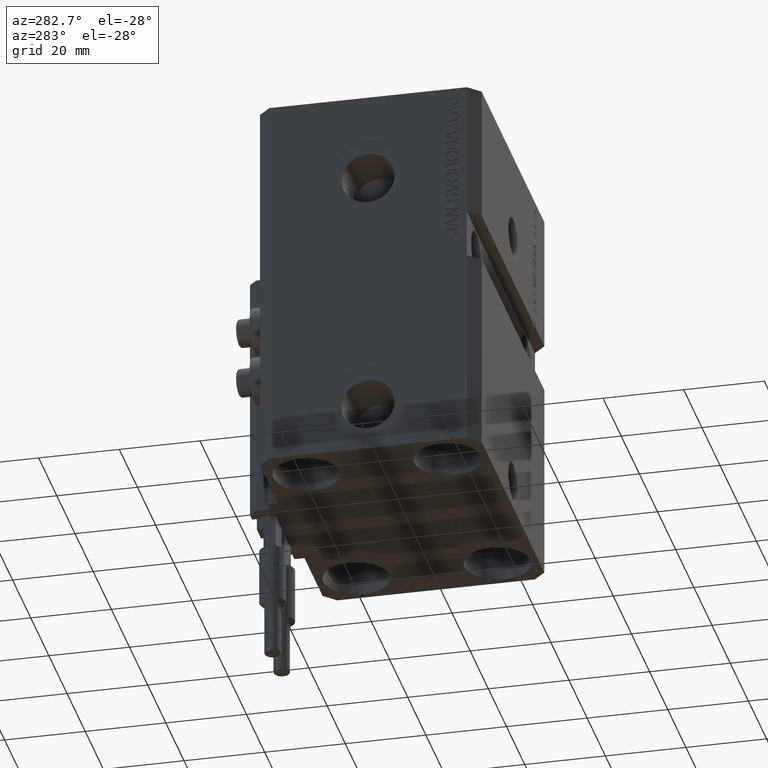
[diagram: clean part render]
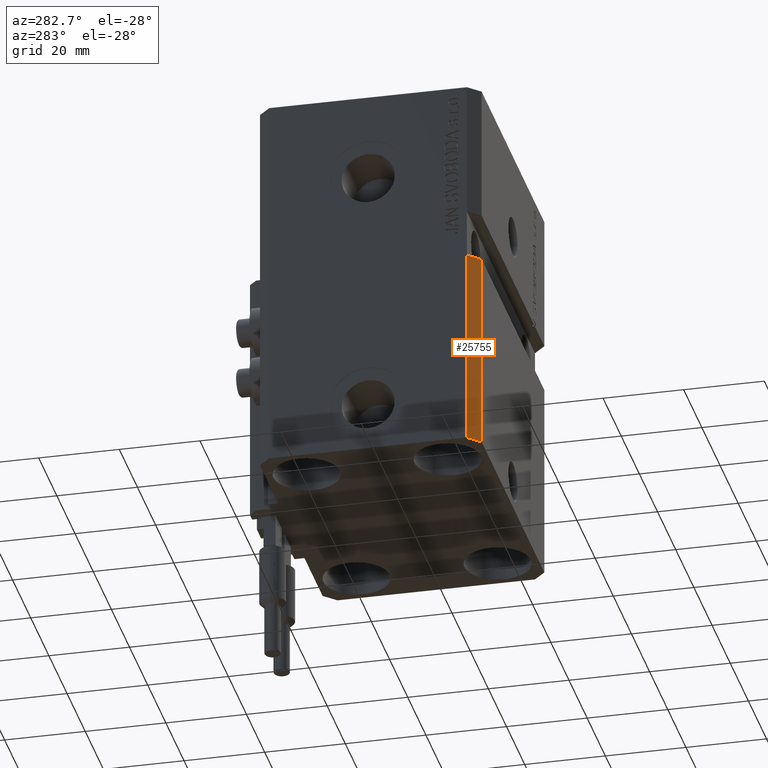
[diagram: same view with one face highlighted and labeled with its STEP entity id]
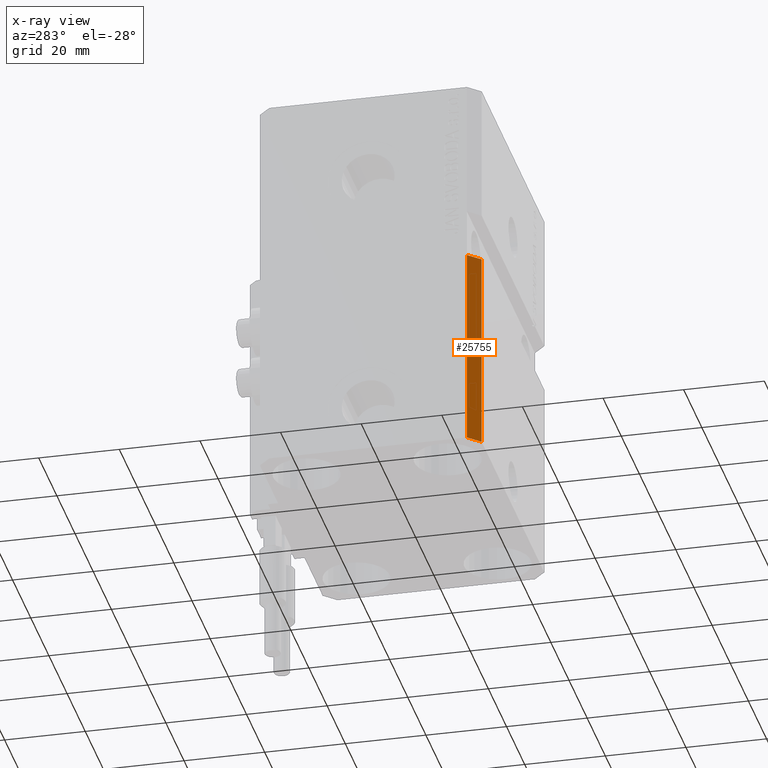
[diagram: x-ray of the same camera — body ghosted, the highlighted face saturated]
A machine part, auxiliary view. The second image highlights one B-rep face of the part: STEP entity #25755.
The next image is the same camera in x-ray: the body ghosted, the highlighted face saturated — about 0% of this face is hidden behind the body in this view.
In plain terms, the highlighted planar face has unit normal (-0.7071, -0.7071, 0).
Its self-contained STEP definition (entity closure, byte-faithful):
#1060 = AXIS2_PLACEMENT_3D ( 'NONE', #19028, #29527, #3688 ) ;
#1550 = EDGE_CURVE ( 'NONE', #9611, #18100, #11114, .T. ) ;
#3688 = DIRECTION ( 'NONE',  ( 0.7071067811865483499, -0.7071067811865466846, 0.000000000000000000 ) ) ;
#4550 = ORIENTED_EDGE ( 'NONE', *, *, #15456, .T. ) ;
#5483 = CARTESIAN_POINT ( 'NONE',  ( -37.49999999999999289, -24.50000000000000000, -96.00000000000000000 ) ) ;
#6868 = PLANE ( 'NONE',  #1060 ) ;
#7474 = DIRECTION ( 'NONE',  ( 0.7071067811865483499, -0.7071067811865466846, 0.000000000000000000 ) ) ;
#9611 = VERTEX_POINT ( 'NONE', #35205 ) ;
#11114 = LINE ( 'NONE', #18914, #30788 ) ;
#15305 = EDGE_LOOP ( 'NONE', ( #20993, #31940, #4550, #18370 ) ) ;
#15456 = EDGE_CURVE ( 'NONE', #37599, #22849, #15773, .T. ) ;
#15773 = LINE ( 'NONE', #35034, #32047 ) ;
#16528 = CARTESIAN_POINT ( 'NONE',  ( -34.49999999999998579, -27.50000000000000000, -46.00000000000000000 ) ) ;
#18100 = VERTEX_POINT ( 'NONE', #16528 ) ;
#18370 = ORIENTED_EDGE ( 'NONE', *, *, #40148, .T. ) ;
#18914 = CARTESIAN_POINT ( 'NONE',  ( -37.49999999999999289, -24.50000000000000000, -46.00000000000000000 ) ) ;
#19028 = CARTESIAN_POINT ( 'NONE',  ( -37.49999999999999289, -24.50000000000000000, -96.00000000000000000 ) ) ;
#19736 = CARTESIAN_POINT ( 'NONE',  ( -34.49999999999998579, -27.49999999999999645, -96.00000000000000000 ) ) ;
#20099 = CARTESIAN_POINT ( 'NONE',  ( -37.49999999999999289, -24.50000000000000000, -96.00000000000000000 ) ) ;
#20993 = ORIENTED_EDGE ( 'NONE', *, *, #1550, .F. ) ;
#22455 = FACE_OUTER_BOUND ( 'NONE', #15305, .T. ) ;
#22849 = VERTEX_POINT ( 'NONE', #19736 ) ;
#24737 = VECTOR ( 'NONE', #38616, 1000.000000000000000 ) ;
#25755 = ADVANCED_FACE ( 'NONE', ( #22455 ), #6868, .T. ) ;
#27409 = LINE ( 'NONE', #20099, #24737 ) ;
#27802 = CARTESIAN_POINT ( 'NONE',  ( -34.49999999999998579, -27.49999999999999645, -96.00000000000000000 ) ) ;
#29527 = DIRECTION ( 'NONE',  ( -0.7071067811865466846, -0.7071067811865483499, 0.000000000000000000 ) ) ;
#30788 = VECTOR ( 'NONE', #7474, 1000.000000000000000 ) ;
#31363 = DIRECTION ( 'NONE',  ( 0.7071067811865483499, -0.7071067811865466846, 0.000000000000000000 ) ) ;
#31940 = ORIENTED_EDGE ( 'NONE', *, *, #37642, .F. ) ;
#32047 = VECTOR ( 'NONE', #31363, 1000.000000000000000 ) ;
#35034 = CARTESIAN_POINT ( 'NONE',  ( -37.49999999999999289, -24.50000000000000000, -96.00000000000000000 ) ) ;
#35205 = CARTESIAN_POINT ( 'NONE',  ( -37.50000000000000000, -24.50000000000000000, -46.00000000000000000 ) ) ;
#37599 = VERTEX_POINT ( 'NONE', #5483 ) ;
#37642 = EDGE_CURVE ( 'NONE', #37599, #9611, #27409, .T. ) ;
#38616 = DIRECTION ( 'NONE',  ( 0.000000000000000000, 0.000000000000000000, 1.000000000000000000 ) ) ;
#39731 = LINE ( 'NONE', #27802, #45828 ) ;
#40148 = EDGE_CURVE ( 'NONE', #22849, #18100, #39731, .T. ) ;
#43147 = DIRECTION ( 'NONE',  ( 0.000000000000000000, 0.000000000000000000, 1.000000000000000000 ) ) ;
#45828 = VECTOR ( 'NONE', #43147, 1000.000000000000000 ) ;